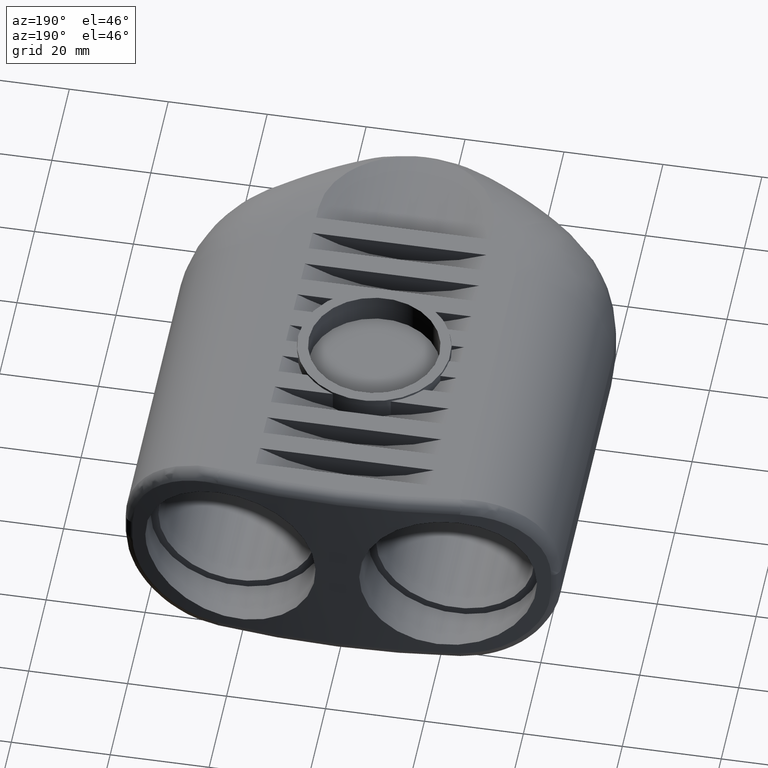
[diagram: clean part render]
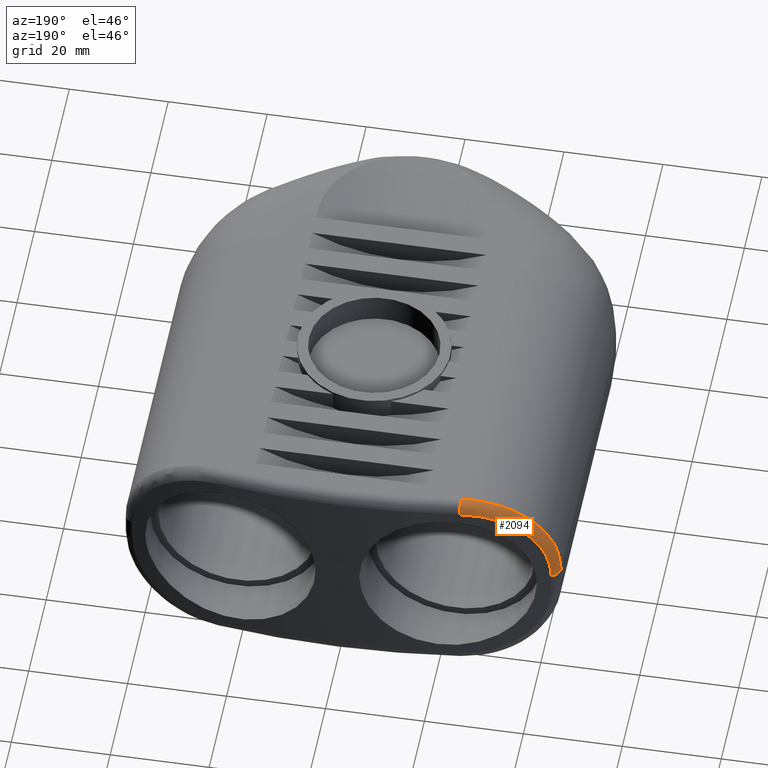
[diagram: same view with one face highlighted and labeled with its STEP entity id]
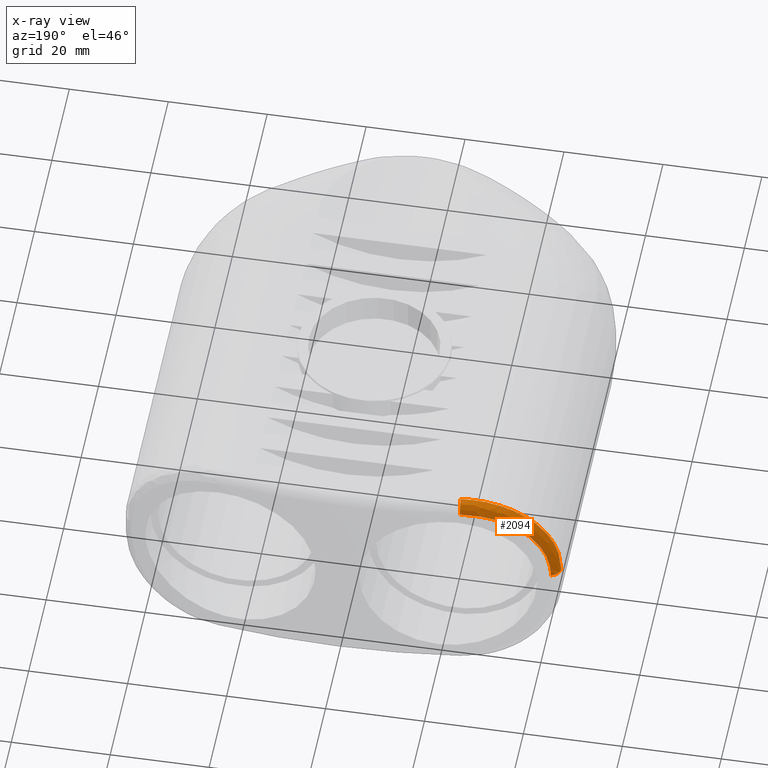
[diagram: x-ray of the same camera — body ghosted, the highlighted face saturated]
A machine part, auxiliary view. The second image highlights one B-rep face of the part: STEP entity #2094.
The next image is the same camera in x-ray: the body ghosted, the highlighted face saturated — about 0% of this face is hidden behind the body in this view.
In plain terms, the highlighted face is a freeform B-spline surface patch.
Its self-contained STEP definition (entity closure, byte-faithful):
#17=B_SPLINE_SURFACE_WITH_KNOTS('',3,3,((#4053,#4054,#4055,#4056,#4057,
#4058,#4059),(#4060,#4061,#4062,#4063,#4064,#4065,#4066),(#4067,#4068,#4069,
#4070,#4071,#4072,#4073),(#4074,#4075,#4076,#4077,#4078,#4079,#4080),(#4081,
#4082,#4083,#4084,#4085,#4086,#4087)),.UNSPECIFIED.,.F.,.F.,.F.,(4,1,4),
(4,1,1,1,4),(0.,0.571428571428571,1.),(0.,0.796310708613923,1.19446606292088,
1.99077677153481,2.78708748014873),.UNSPECIFIED.);
#326=B_SPLINE_CURVE_WITH_KNOTS('',3,(#4091,#4092,#4093,#4094,#4095,#4096,
#4097),.UNSPECIFIED.,.F.,.F.,(4,1,1,1,4),(-2.78708748014873,-1.99077677153481,
-1.19446606292088,-0.796310708613923,0.),.UNSPECIFIED.);
#327=B_SPLINE_CURVE_WITH_KNOTS('',3,(#4098,#4099,#4100,#4101,#4102,#4103,
#4104),.UNSPECIFIED.,.F.,.F.,(4,1,1,1,4),(0.,0.796310708613923,1.19446606292088,
1.99077677153481,2.78708748014873),.UNSPECIFIED.);
#535=FACE_OUTER_BOUND('',#687,.T.);
#687=EDGE_LOOP('',(#1731,#1732,#1733,#1734));
#827=CIRCLE('',#2328,2.19999999999997);
#830=CIRCLE('',#2331,2.2);
#1030=VERTEX_POINT('',#4048);
#1031=VERTEX_POINT('',#4049);
#1032=VERTEX_POINT('',#4088);
#1033=VERTEX_POINT('',#4089);
#1303=EDGE_CURVE('',#1030,#1031,#827,.T.);
#1306=EDGE_CURVE('',#1032,#1033,#830,.T.);
#1307=EDGE_CURVE('',#1033,#1031,#326,.T.);
#1308=EDGE_CURVE('',#1030,#1032,#327,.T.);
#1731=ORIENTED_EDGE('',*,*,#1306,.T.);
#1732=ORIENTED_EDGE('',*,*,#1307,.T.);
#1733=ORIENTED_EDGE('',*,*,#1303,.F.);
#1734=ORIENTED_EDGE('',*,*,#1308,.T.);
#2094=ADVANCED_FACE('',(#535),#17,.F.);
#2328=AXIS2_PLACEMENT_3D('',#4050,#2904,#2905);
#2331=AXIS2_PLACEMENT_3D('',#4090,#2910,#2911);
#2904=DIRECTION('center_axis',(0.990896687145592,0.134624497785102,-2.00021148562514E-15));
#2905=DIRECTION('ref_axis',(-0.134624497785102,0.990896687145592,0.));
#2910=DIRECTION('center_axis',(3.78485122031304E-16,9.04908598603548E-17,
1.));
#2911=DIRECTION('ref_axis',(-0.232533223446999,0.972588453557489,0.));
#4048=CARTESIAN_POINT('',(-24.4961738951272,84.7435679362066,19.8));
#4049=CARTESIAN_POINT('',(-24.2,82.5635952244863,22.));
#4050=CARTESIAN_POINT('Origin',(-24.2,82.5635952244863,19.8));
#4053=CARTESIAN_POINT('Ctrl Pts',(-24.4961738951273,84.7435679362066,19.8));
#4054=CARTESIAN_POINT('Ctrl Pts',(-27.1585693804513,84.3818514628681,19.8));
#4055=CARTESIAN_POINT('Ctrl Pts',(-31.1343375143789,83.7452830234432,18.8996100667035));
#4056=CARTESIAN_POINT('Ctrl Pts',(-36.7914315568812,82.6649355050919,15.4062634826505));
#4057=CARTESIAN_POINT('Ctrl Pts',(-41.070227710206,81.7165881016797,10.1588266293202));
#4058=CARTESIAN_POINT('Ctrl Pts',(-42.3115730915834,81.41221531417,4.85436902871307));
#4059=CARTESIAN_POINT('Ctrl Pts',(-42.3115730915834,81.41221531417,2.2));
#4060=CARTESIAN_POINT('Ctrl Pts',(-24.4961738951273,84.7435679362066,20.4582384607522));
#4061=CARTESIAN_POINT('Ctrl Pts',(-27.2556434870306,84.3683089610569,20.449620295732));
#4062=CARTESIAN_POINT('Ctrl Pts',(-31.3669129267639,83.7070505630908,19.4997340521185));
#4063=CARTESIAN_POINT('Ctrl Pts',(-37.195747422558,82.5823779993062,15.858834068975));
#4064=CARTESIAN_POINT('Ctrl Pts',(-41.5863487792395,81.5972250853718,10.4191458582223));
#4065=CARTESIAN_POINT('Ctrl Pts',(-42.8561212223917,81.2820209532194,4.94139330144181));
#4066=CARTESIAN_POINT('Ctrl Pts',(-42.8561212223917,81.2820209532194,2.2));
#4067=CARTESIAN_POINT('Ctrl Pts',(-24.4216965305708,84.1953811275611,21.5975242719632));
#4068=CARTESIAN_POINT('Ctrl Pts',(-27.3416683684119,83.8138863589448,21.5751892023667));
#4069=CARTESIAN_POINT('Ctrl Pts',(-31.6820720611186,83.1389760928217,20.5394100931265));
#4070=CARTESIAN_POINT('Ctrl Pts',(-37.8040345930805,81.994597828378,16.6456776463404));
#4071=CARTESIAN_POINT('Ctrl Pts',(-42.3913863330547,80.9930911030239,10.8726805064458));
#4072=CARTESIAN_POINT('Ctrl Pts',(-43.7121405855819,80.6729440231829,5.09220135215016));
#4073=CARTESIAN_POINT('Ctrl Pts',(-43.7121405855819,80.6729440231829,2.2));
#4074=CARTESIAN_POINT('Ctrl Pts',(-24.2664612666512,83.0527799570696,22.));
#4075=CARTESIAN_POINT('Ctrl Pts',(-27.2320566483762,82.6882636910328,21.9899811452205));
#4076=CARTESIAN_POINT('Ctrl Pts',(-31.6514322692972,82.0455043962821,20.9579256844563));
#4077=CARTESIAN_POINT('Ctrl Pts',(-37.9166907882511,80.9552581144272,17.0076057512224));
#4078=CARTESIAN_POINT('Ctrl Pts',(-42.6356772724755,79.999013579708,11.1084601218442));
#4079=CARTESIAN_POINT('Ctrl Pts',(-44.,79.6924425204862,5.17115576357778));
#4080=CARTESIAN_POINT('Ctrl Pts',(-44.,79.6924425204862,2.2));
#4081=CARTESIAN_POINT('Ctrl Pts',(-24.2,82.5635952244863,22.));
#4082=CARTESIAN_POINT('Ctrl Pts',(-27.1589811616404,82.2062521270594,22.));
#4083=CARTESIAN_POINT('Ctrl Pts',(-31.5776421292501,81.5773801938329,20.9870613250414));
#4084=CARTESIAN_POINT('Ctrl Pts',(-37.8649254399618,80.5100947452551,17.0570464179818));
#4085=CARTESIAN_POINT('Ctrl Pts',(-42.6203711586681,79.5732134485746,11.1536799579852));
#4086=CARTESIAN_POINT('Ctrl Pts',(-44.,79.2725207163435,5.18616515730219));
#4087=CARTESIAN_POINT('Ctrl Pts',(-44.,79.2725207163435,2.2));
#4088=CARTESIAN_POINT('',(-42.3115730915834,81.41221531417,2.2));
#4089=CARTESIAN_POINT('',(-44.,79.2725207163435,2.2));
#4090=CARTESIAN_POINT('Origin',(-41.8,79.2725207163435,2.2));
#4091=CARTESIAN_POINT('Ctrl Pts',(-44.,79.2725207163435,2.2));
#4092=CARTESIAN_POINT('Ctrl Pts',(-44.,79.2725207163435,5.18616515730219));
#4093=CARTESIAN_POINT('Ctrl Pts',(-42.6203711586681,79.5732134485746,11.1536799579852));
#4094=CARTESIAN_POINT('Ctrl Pts',(-37.8649254399618,80.5100947452551,17.0570464179818));
#4095=CARTESIAN_POINT('Ctrl Pts',(-31.5776421292501,81.5773801938329,20.9870613250414));
#4096=CARTESIAN_POINT('Ctrl Pts',(-27.1589811616404,82.2062521270594,22.));
#4097=CARTESIAN_POINT('Ctrl Pts',(-24.2,82.5635952244863,22.));
#4098=CARTESIAN_POINT('Ctrl Pts',(-24.4961738951273,84.7435679362066,19.8));
#4099=CARTESIAN_POINT('Ctrl Pts',(-27.1585693804513,84.3818514628681,19.8));
#4100=CARTESIAN_POINT('Ctrl Pts',(-31.1343375143789,83.7452830234432,18.8996100667035));
#4101=CARTESIAN_POINT('Ctrl Pts',(-36.7914315568812,82.6649355050919,15.4062634826505));
#4102=CARTESIAN_POINT('Ctrl Pts',(-41.070227710206,81.7165881016797,10.1588266293202));
#4103=CARTESIAN_POINT('Ctrl Pts',(-42.3115730915834,81.41221531417,4.85436902871307));
#4104=CARTESIAN_POINT('Ctrl Pts',(-42.3115730915834,81.41221531417,2.2));